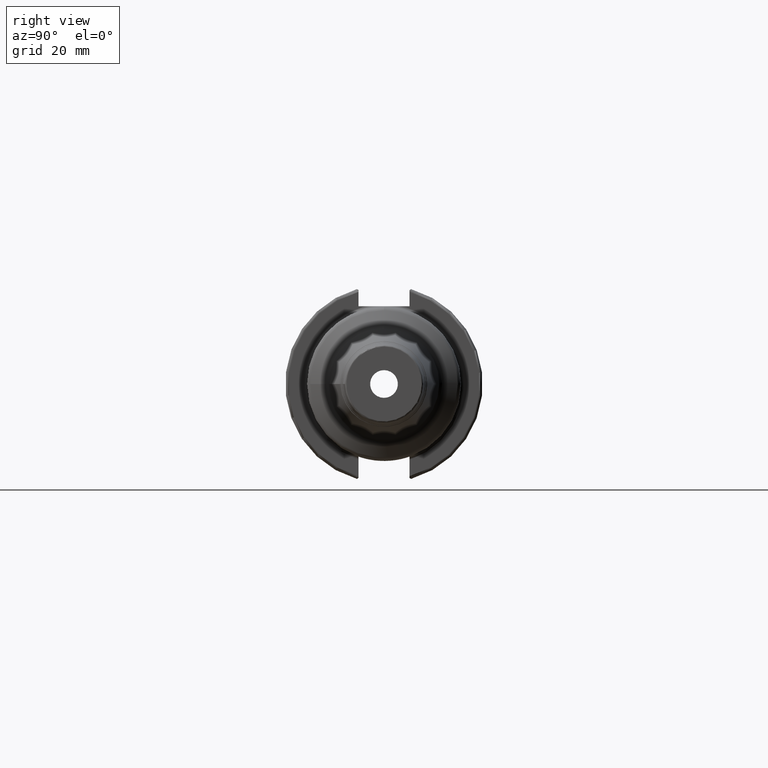
[diagram: clean part render]
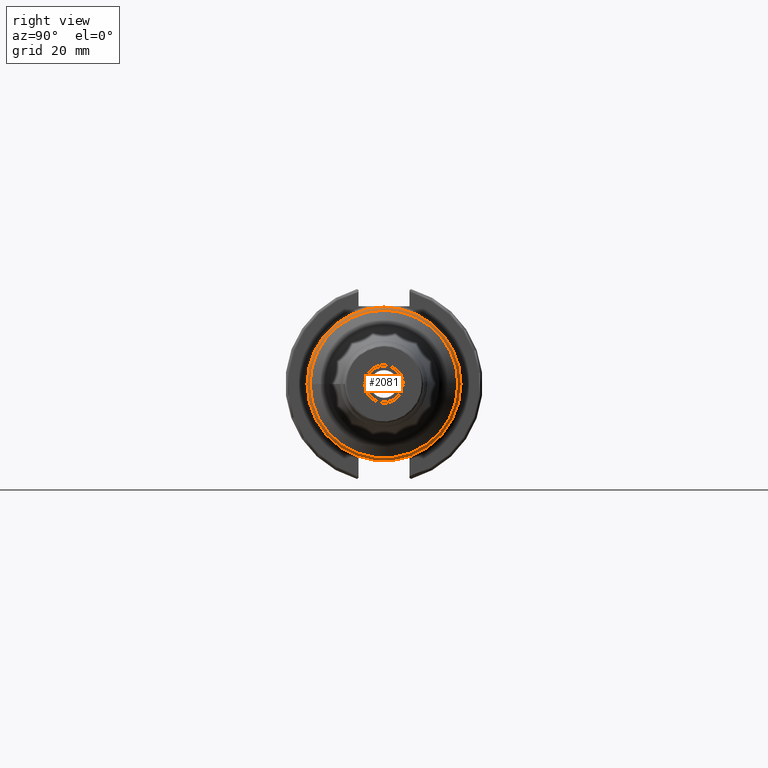
[diagram: same view with one face highlighted and labeled with its STEP entity id]
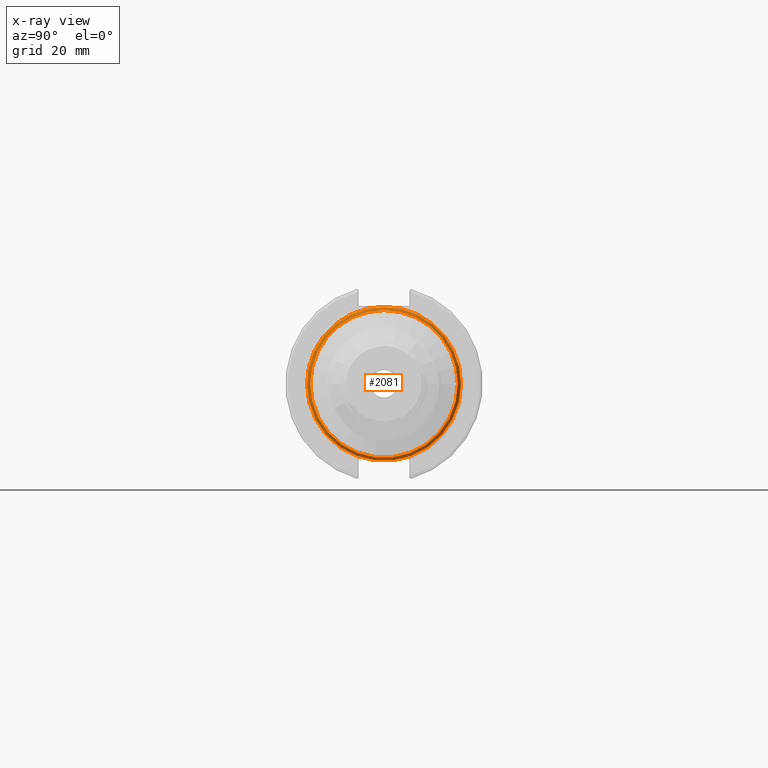
[diagram: x-ray of the same camera — body ghosted, the highlighted face saturated]
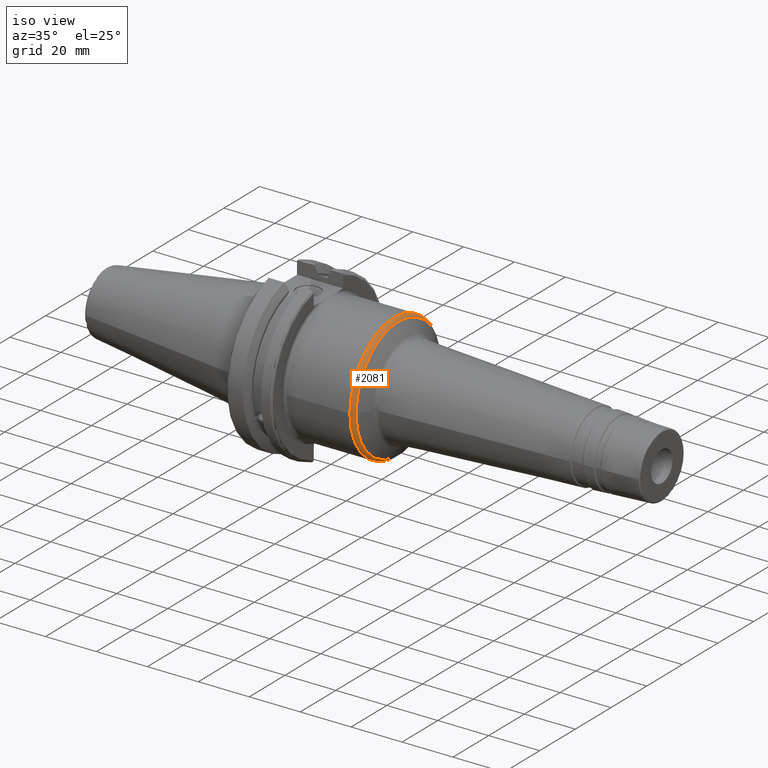
[diagram: same view with one face highlighted and labeled with its STEP entity id]
A machine part, right view. The second image highlights one B-rep face of the part: STEP entity #2081.
The next image is the same camera in x-ray: the body ghosted, the highlighted face saturated — about 0% of this face is hidden behind the body in this view.
A second angle (iso view) of the same face is appended — the face is thin or edge-on in the first view.
In plain terms, the highlighted toroidal blend (fillet) surface has major radius 22.75 mm and minor (blend) radius 2 mm.
Its self-contained STEP definition (entity closure, byte-faithful):
#400=FACE_OUTER_BOUND('',#507,.T.);
#507=EDGE_LOOP('',(#1542,#1543,#1544,#1545,#1546,#1547,#1548,#1549));
#675=CIRCLE('',#2277,24.75);
#676=CIRCLE('',#2278,24.75);
#677=CIRCLE('',#2279,24.75);
#682=CIRCLE('',#2286,23.75);
#683=CIRCLE('',#2287,23.75);
#684=CIRCLE('',#2288,23.75);
#685=CIRCLE('',#2290,2.);
#846=VERTEX_POINT('',#3380);
#847=VERTEX_POINT('',#3381);
#848=VERTEX_POINT('',#3383);
#852=VERTEX_POINT('',#3414);
#853=VERTEX_POINT('',#3416);
#854=VERTEX_POINT('',#3418);
#1106=EDGE_CURVE('',#846,#847,#675,.T.);
#1107=EDGE_CURVE('',#848,#846,#676,.T.);
#1110=EDGE_CURVE('',#847,#848,#677,.T.);
#1116=EDGE_CURVE('',#853,#852,#682,.T.);
#1117=EDGE_CURVE('',#854,#853,#683,.T.);
#1118=EDGE_CURVE('',#852,#854,#684,.T.);
#1119=EDGE_CURVE('',#854,#847,#685,.T.);
#1542=ORIENTED_EDGE('',*,*,#1116,.T.);
#1543=ORIENTED_EDGE('',*,*,#1118,.T.);
#1544=ORIENTED_EDGE('',*,*,#1119,.T.);
#1545=ORIENTED_EDGE('',*,*,#1110,.T.);
#1546=ORIENTED_EDGE('',*,*,#1107,.T.);
#1547=ORIENTED_EDGE('',*,*,#1106,.T.);
#1548=ORIENTED_EDGE('',*,*,#1119,.F.);
#1549=ORIENTED_EDGE('',*,*,#1117,.T.);
#2050=TOROIDAL_SURFACE('',#2289,22.75,2.);
#2081=ADVANCED_FACE('',(#400),#2050,.T.);
#2277=AXIS2_PLACEMENT_3D('',#3382,#2684,#2685);
#2278=AXIS2_PLACEMENT_3D('',#3384,#2686,#2687);
#2279=AXIS2_PLACEMENT_3D('',#3404,#2689,#2690);
#2286=AXIS2_PLACEMENT_3D('',#3417,#2704,#2705);
#2287=AXIS2_PLACEMENT_3D('',#3419,#2706,#2707);
#2288=AXIS2_PLACEMENT_3D('',#3420,#2708,#2709);
#2289=AXIS2_PLACEMENT_3D('',#3421,#2710,#2711);
#2290=AXIS2_PLACEMENT_3D('',#3422,#2712,#2713);
#2684=DIRECTION('center_axis',(1.,0.,0.));
#2685=DIRECTION('ref_axis',(0.,-1.,1.83697019872103E-16));
#2686=DIRECTION('center_axis',(1.,0.,0.));
#2687=DIRECTION('ref_axis',(0.,-1.,1.83697019872103E-16));
#2689=DIRECTION('center_axis',(1.,0.,0.));
#2690=DIRECTION('ref_axis',(0.,-1.,1.83697019872103E-16));
#2704=DIRECTION('center_axis',(-1.,0.,0.));
#2705=DIRECTION('ref_axis',(0.,-1.,3.06161699786838E-17));
#2706=DIRECTION('center_axis',(-1.,0.,0.));
#2707=DIRECTION('ref_axis',(0.,-1.,3.06161699786838E-17));
#2708=DIRECTION('center_axis',(-1.,0.,0.));
#2709=DIRECTION('ref_axis',(0.,-1.,3.06161699786838E-17));
#2710=DIRECTION('center_axis',(1.,0.,0.));
#2711=DIRECTION('ref_axis',(0.,0.,-1.));
#2712=DIRECTION('center_axis',(0.,-1.,-1.22464679914735E-16));
#2713=DIRECTION('ref_axis',(0.,-1.22464679914735E-16,1.));
#3380=CARTESIAN_POINT('',(44.7985232117173,24.75,-1.51550041394485E-15));
#3381=CARTESIAN_POINT('',(44.7985232117173,-3.0310008278897E-15,24.75));
#3382=CARTESIAN_POINT('Origin',(44.7985232117173,0.,0.));
#3383=CARTESIAN_POINT('',(44.7985232117173,-24.75,-3.0310008278897E-15));
#3384=CARTESIAN_POINT('Origin',(44.7985232117173,0.,0.));
#3404=CARTESIAN_POINT('Origin',(44.7985232117173,0.,0.));
#3414=CARTESIAN_POINT('',(46.5305740192861,-23.75,-2.90853614797496E-15));
#3416=CARTESIAN_POINT('',(46.5305740192861,23.75,-7.27134036993741E-15));
#3417=CARTESIAN_POINT('Origin',(46.5305740192861,0.,-3.6356701849687E-15));
#3418=CARTESIAN_POINT('',(46.5305740192861,-2.90853614797496E-15,23.75));
#3419=CARTESIAN_POINT('Origin',(46.5305740192861,0.,-3.6356701849687E-15));
#3420=CARTESIAN_POINT('Origin',(46.5305740192861,0.,-3.6356701849687E-15));
#3421=CARTESIAN_POINT('Origin',(44.7985232117173,0.,0.));
#3422=CARTESIAN_POINT('Origin',(44.7985232117173,-2.78607146806023E-15,
22.75));